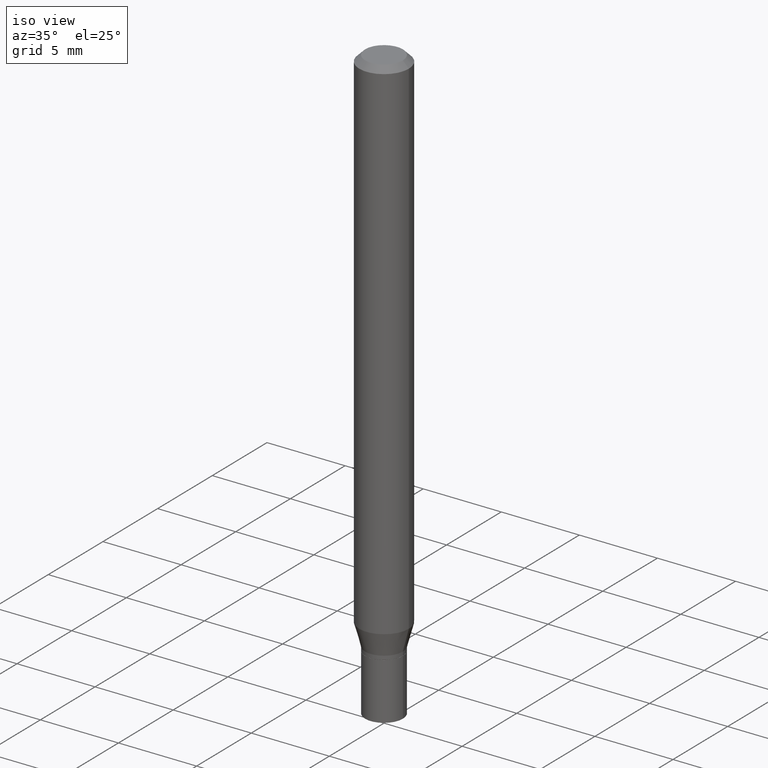
[diagram: clean part render]
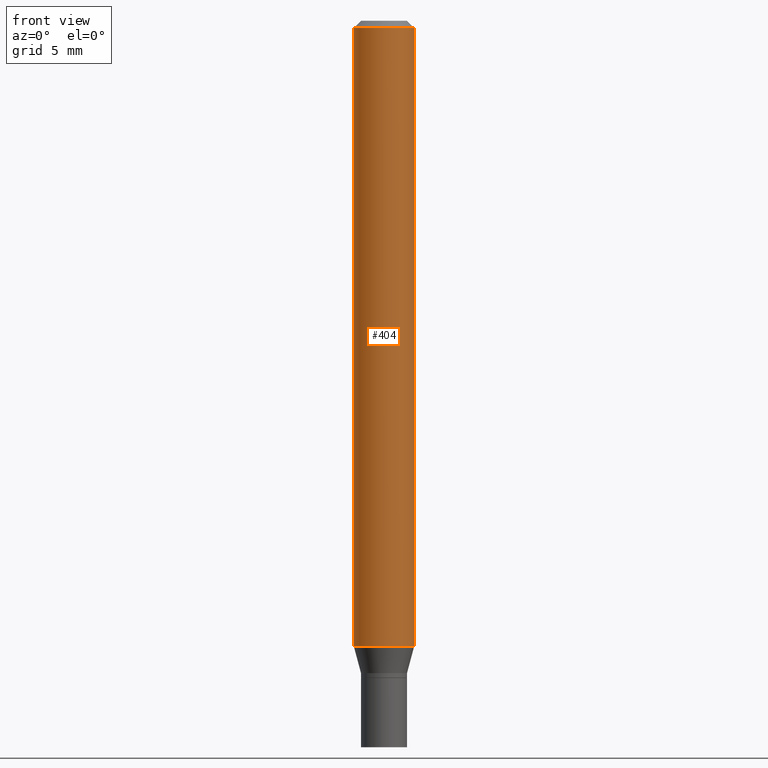
[diagram: tour spotlight — one face highlighted and labeled with its STEP entity id]
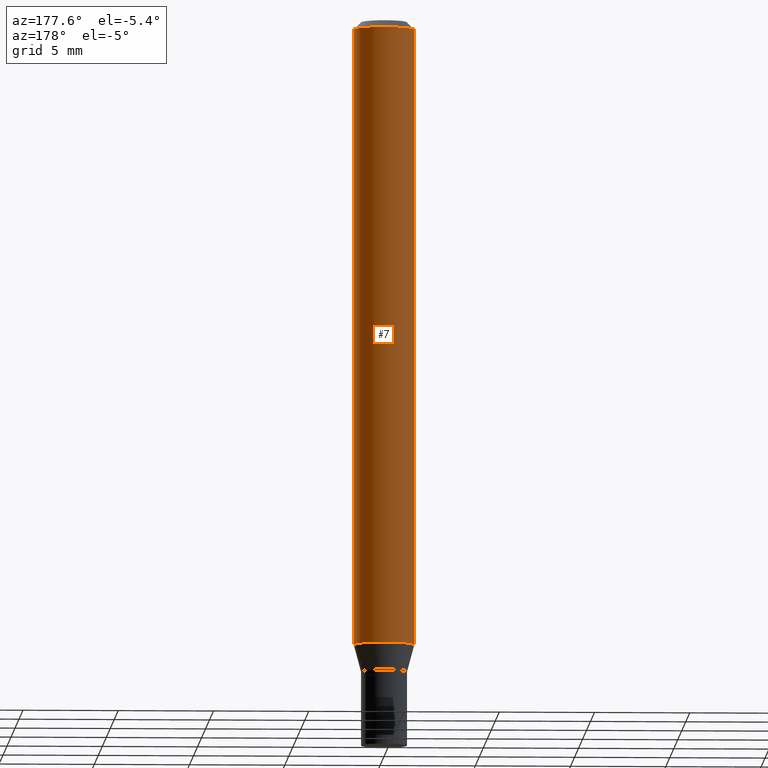
[diagram: tour spotlight — one face highlighted and labeled with its STEP entity id]
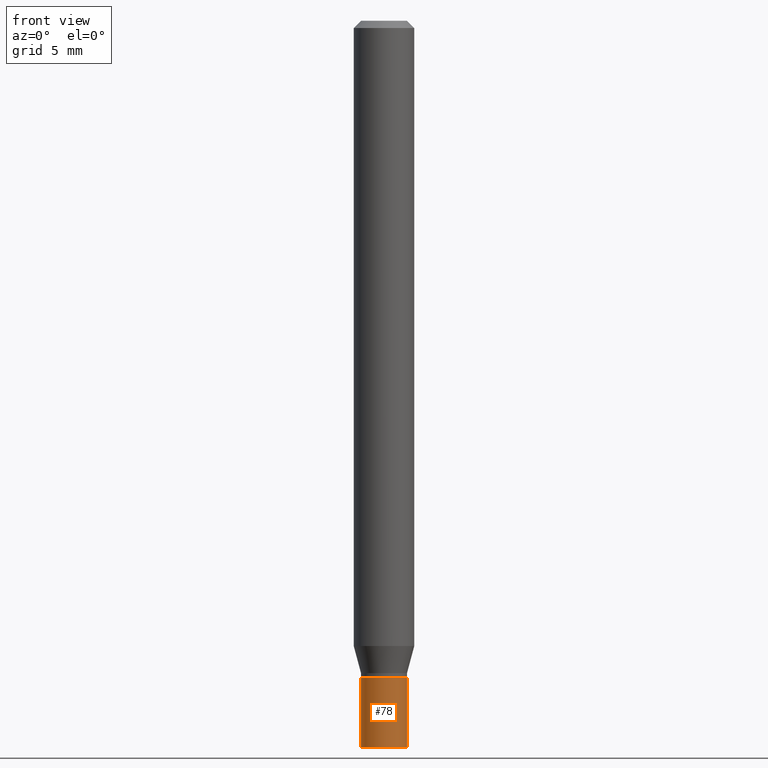
[diagram: tour spotlight — one face highlighted and labeled with its STEP entity id]
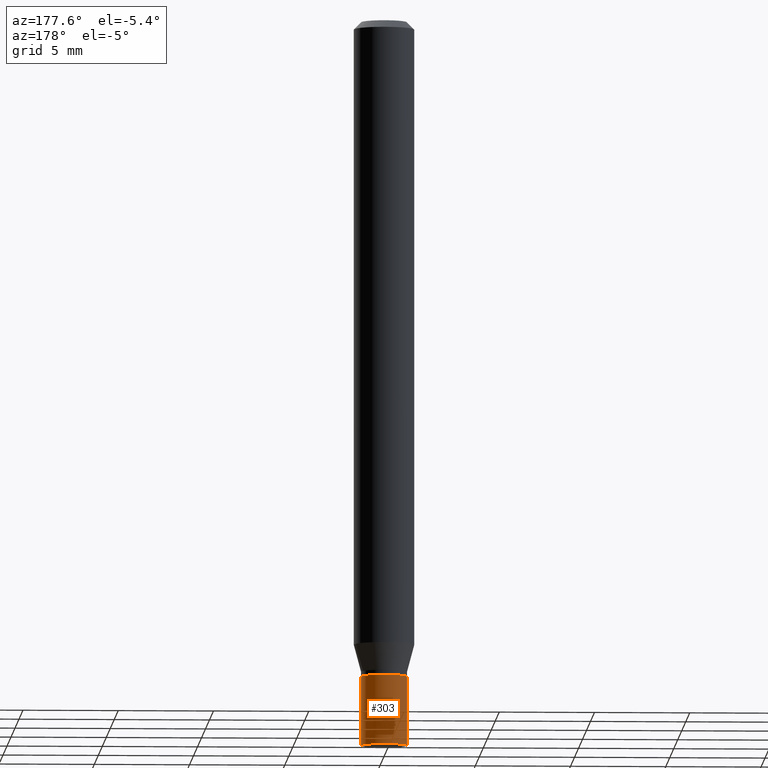
[diagram: tour spotlight — one face highlighted and labeled with its STEP entity id]
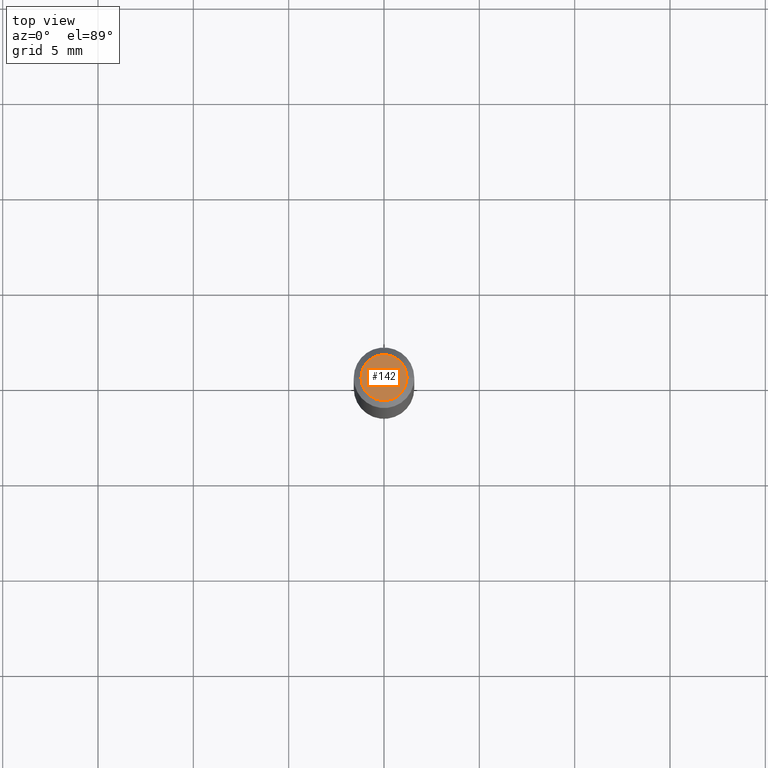
[diagram: tour spotlight — one face highlighted and labeled with its STEP entity id]
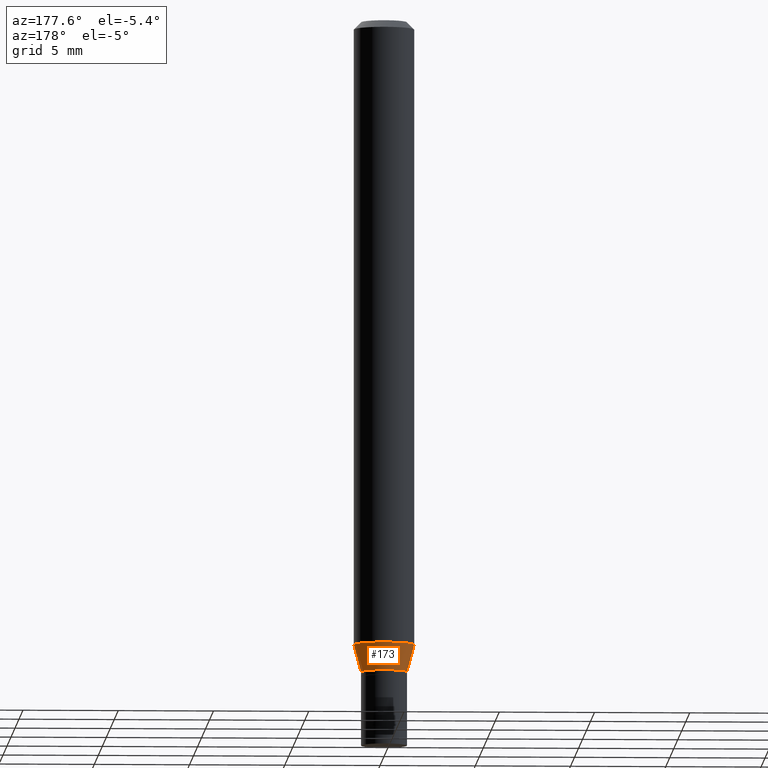
[diagram: tour spotlight — one face highlighted and labeled with its STEP entity id]
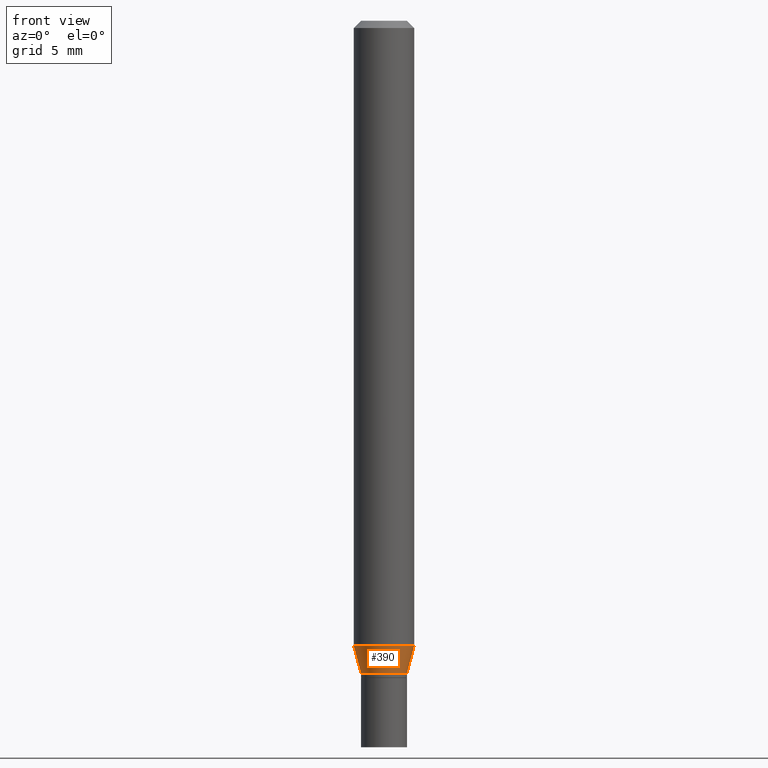
[diagram: tour spotlight — one face highlighted and labeled with its STEP entity id]
A machine part: a face-by-face anatomy tour. The part has 16 B-rep faces; the first image is the clean iso view, then the 7 largest visible faces are spotlighted one at a time (largest first), each with its STEP entity span.

Face 1 — front view, entity #404. In plain terms, the highlighted cylindrical surface (edge-blend (fillet) strip) has radius 1.5875 mm, axis along (-0, 0, 1).
Definition (entity closure, byte-faithful):
#4 = DIRECTION ( 'NONE',  ( -2.445468806185136597E-29, 3.491481338843145583E-15, 1.000000000000000000 ) ) ;
#5 = DIRECTION ( 'NONE',  ( 1.000000000000000000, -6.982962677686266711E-15, 0.000000000000000000 ) ) ;
#13 = CIRCLE ( 'NONE', #257, 0.06250000000000000000 ) ;
#53 = DIRECTION ( 'NONE',  ( 1.000000000000000000, -6.982962677686266711E-15, 4.876176775795935793E-29 ) ) ;
#57 = CARTESIAN_POINT ( 'NONE',  ( 0.06250000000000000000, -4.364351673553916694E-16, 3.047610484872459871E-30 ) ) ;
#79 = DIRECTION ( 'NONE',  ( -2.445468806185136877E-29, 3.491481338843145188E-15, 1.000000000000000000 ) ) ;
#80 = EDGE_LOOP ( 'NONE', ( #345, #139, #299, #383 ) ) ;
#86 = LINE ( 'NONE', #159, #352 ) ;
#91 = DIRECTION ( 'NONE',  ( -2.445468806185136877E-29, 3.491481338843145188E-15, 1.000000000000000000 ) ) ;
#92 = CARTESIAN_POINT ( 'NONE',  ( -0.06250000000000000000, -1.835881688775309869E-15, -0.01499999999999999944 ) ) ;
#111 = EDGE_CURVE ( 'NONE', #432, #354, #400, .T. ) ;
#121 = CARTESIAN_POINT ( 'NONE',  ( 0.06250000000000000000, -4.888073874380388472E-16, -0.01499999999999999944 ) ) ;
#127 = EDGE_CURVE ( 'NONE', #136, #130, #13, .T. ) ;
#130 = VERTEX_POINT ( 'NONE', #435 ) ;
#136 = VERTEX_POINT ( 'NONE', #278 ) ;
#139 = ORIENTED_EDGE ( 'NONE', *, *, #127, .T. ) ;
#159 = CARTESIAN_POINT ( 'NONE',  ( -0.06250000000000000000, 4.440892098500626162E-16, -3.074334431409316114E-30 ) ) ;
#161 = VECTOR ( 'NONE', #79, 39.37007874015748143 ) ;
#201 = LINE ( 'NONE', #57, #161 ) ;
#208 = AXIS2_PLACEMENT_3D ( 'NONE', #293, #455, #53 ) ;
#230 = EDGE_CURVE ( 'NONE', #136, #432, #86, .T. ) ;
#235 = EDGE_CURVE ( 'NONE', #130, #354, #201, .T. ) ;
#245 = CARTESIAN_POINT ( 'NONE',  ( 3.157147274436261961E-29, -4.507569577168097497E-15, -1.291019237886466442 ) ) ;
#257 = AXIS2_PLACEMENT_3D ( 'NONE', #245, #273, #314 ) ;
#264 = FACE_OUTER_BOUND ( 'NONE', #80, .T. ) ;
#273 = DIRECTION ( 'NONE',  ( -2.445468806185136597E-29, 3.491481338843145583E-15, 1.000000000000000000 ) ) ;
#278 = CARTESIAN_POINT ( 'NONE',  ( -0.06250000000000000000, -4.063480367318034881E-15, -1.291019237886466442 ) ) ;
#291 = AXIS2_PLACEMENT_3D ( 'NONE', #389, #4, #5 ) ;
#293 = CARTESIAN_POINT ( 'NONE',  ( 0.000000000000000000, 0.000000000000000000, 0.000000000000000000 ) ) ;
#299 = ORIENTED_EDGE ( 'NONE', *, *, #235, .T. ) ;
#314 = DIRECTION ( 'NONE',  ( 1.000000000000000000, -6.982962677686262766E-15, 0.000000000000000000 ) ) ;
#324 = CYLINDRICAL_SURFACE ( 'NONE', #208, 0.06250000000000000000 ) ;
#345 = ORIENTED_EDGE ( 'NONE', *, *, #230, .F. ) ;
#352 = VECTOR ( 'NONE', #91, 39.37007874015748143 ) ;
#354 = VERTEX_POINT ( 'NONE', #121 ) ;
#383 = ORIENTED_EDGE ( 'NONE', *, *, #111, .F. ) ;
#389 = CARTESIAN_POINT ( 'NONE',  ( 3.668203209277705088E-31, -5.237222008264718399E-17, -0.01499999999999999944 ) ) ;
#400 = CIRCLE ( 'NONE', #291, 0.06250000000000000000 ) ;
#404 = ADVANCED_FACE ( 'NONE', ( #264 ), #324, .T. ) ;
#432 = VERTEX_POINT ( 'NONE', #92 ) ;
#435 = CARTESIAN_POINT ( 'NONE',  ( 0.06250000000000000000, -4.944004744523489167E-15, -1.291019237886466442 ) ) ;
#455 = DIRECTION ( 'NONE',  ( -2.445468806185136597E-29, 3.491481338843145583E-15, 1.000000000000000000 ) ) ;

Face 2 — auxiliary view, entity #7. In plain terms, the highlighted cylindrical surface (edge-blend (fillet) strip) has radius 1.5875 mm, axis along (-0, 0, 1).
Definition (entity closure, byte-faithful):
#7 = ADVANCED_FACE ( 'NONE', ( #379 ), #59, .T. ) ;
#20 = CARTESIAN_POINT ( 'NONE',  ( 3.157147274436261961E-29, -4.507569577168097497E-15, -1.291019237886466442 ) ) ;
#26 = DIRECTION ( 'NONE',  ( 1.000000000000000000, -6.982962677686266711E-15, 0.000000000000000000 ) ) ;
#57 = CARTESIAN_POINT ( 'NONE',  ( 0.06250000000000000000, -4.364351673553916694E-16, 3.047610484872459871E-30 ) ) ;
#59 = CYLINDRICAL_SURFACE ( 'NONE', #74, 0.06250000000000000000 ) ;
#74 = AXIS2_PLACEMENT_3D ( 'NONE', #200, #199, #465 ) ;
#79 = DIRECTION ( 'NONE',  ( -2.445468806185136877E-29, 3.491481338843145188E-15, 1.000000000000000000 ) ) ;
#86 = LINE ( 'NONE', #159, #352 ) ;
#91 = DIRECTION ( 'NONE',  ( -2.445468806185136877E-29, 3.491481338843145188E-15, 1.000000000000000000 ) ) ;
#92 = CARTESIAN_POINT ( 'NONE',  ( -0.06250000000000000000, -1.835881688775309869E-15, -0.01499999999999999944 ) ) ;
#106 = CIRCLE ( 'NONE', #195, 0.06250000000000000000 ) ;
#121 = CARTESIAN_POINT ( 'NONE',  ( 0.06250000000000000000, -4.888073874380388472E-16, -0.01499999999999999944 ) ) ;
#130 = VERTEX_POINT ( 'NONE', #435 ) ;
#136 = VERTEX_POINT ( 'NONE', #278 ) ;
#147 = ORIENTED_EDGE ( 'NONE', *, *, #252, .T. ) ;
#150 = CARTESIAN_POINT ( 'NONE',  ( 3.668203209277705088E-31, -5.237222008264718399E-17, -0.01499999999999999944 ) ) ;
#159 = CARTESIAN_POINT ( 'NONE',  ( -0.06250000000000000000, 4.440892098500626162E-16, -3.074334431409316114E-30 ) ) ;
#161 = VECTOR ( 'NONE', #79, 39.37007874015748143 ) ;
#170 = CIRCLE ( 'NONE', #312, 0.06250000000000000000 ) ;
#179 = ORIENTED_EDGE ( 'NONE', *, *, #235, .F. ) ;
#195 = AXIS2_PLACEMENT_3D ( 'NONE', #20, #319, #213 ) ;
#199 = DIRECTION ( 'NONE',  ( -2.445468806185136597E-29, 3.491481338843145583E-15, 1.000000000000000000 ) ) ;
#200 = CARTESIAN_POINT ( 'NONE',  ( 0.000000000000000000, 0.000000000000000000, 0.000000000000000000 ) ) ;
#201 = LINE ( 'NONE', #57, #161 ) ;
#203 = EDGE_LOOP ( 'NONE', ( #147, #281, #349, #179 ) ) ;
#213 = DIRECTION ( 'NONE',  ( 1.000000000000000000, -6.982962677686262766E-15, 0.000000000000000000 ) ) ;
#219 = DIRECTION ( 'NONE',  ( -2.445468806185136597E-29, 3.491481338843145583E-15, 1.000000000000000000 ) ) ;
#230 = EDGE_CURVE ( 'NONE', #136, #432, #86, .T. ) ;
#235 = EDGE_CURVE ( 'NONE', #130, #354, #201, .T. ) ;
#252 = EDGE_CURVE ( 'NONE', #130, #136, #106, .T. ) ;
#278 = CARTESIAN_POINT ( 'NONE',  ( -0.06250000000000000000, -4.063480367318034881E-15, -1.291019237886466442 ) ) ;
#281 = ORIENTED_EDGE ( 'NONE', *, *, #230, .T. ) ;
#312 = AXIS2_PLACEMENT_3D ( 'NONE', #150, #219, #26 ) ;
#319 = DIRECTION ( 'NONE',  ( -2.445468806185136597E-29, 3.491481338843145583E-15, 1.000000000000000000 ) ) ;
#349 = ORIENTED_EDGE ( 'NONE', *, *, #357, .F. ) ;
#352 = VECTOR ( 'NONE', #91, 39.37007874015748143 ) ;
#354 = VERTEX_POINT ( 'NONE', #121 ) ;
#357 = EDGE_CURVE ( 'NONE', #354, #432, #170, .T. ) ;
#379 = FACE_OUTER_BOUND ( 'NONE', #203, .T. ) ;
#432 = VERTEX_POINT ( 'NONE', #92 ) ;
#435 = CARTESIAN_POINT ( 'NONE',  ( 0.06250000000000000000, -4.944004744523489167E-15, -1.291019237886466442 ) ) ;
#465 = DIRECTION ( 'NONE',  ( 1.000000000000000000, -6.982962677686266711E-15, 4.876176775795935793E-29 ) ) ;

Face 3 — front view, entity #78. In plain terms, the highlighted cylindrical surface (edge-blend (fillet) strip) has radius 1.2065 mm, axis along (-0, 0, 1).
Definition (entity closure, byte-faithful):
#12 = CARTESIAN_POINT ( 'NONE',  ( -0.04749999999999999362, 3.375077994860475429E-16, -2.336494167871079910E-30 ) ) ;
#28 = EDGE_CURVE ( 'NONE', #382, #120, #391, .T. ) ;
#62 = CARTESIAN_POINT ( 'NONE',  ( -0.04749999999999999362, -4.650073293051385418E-15, -1.500000000000000222 ) ) ;
#78 = ADVANCED_FACE ( 'NONE', ( #81 ), #449, .T. ) ;
#81 = FACE_OUTER_BOUND ( 'NONE', #461, .T. ) ;
#107 = VERTEX_POINT ( 'NONE', #112 ) ;
#108 = CARTESIAN_POINT ( 'NONE',  ( 0.04749999999999999362, -5.568912735454815688E-15, -1.500000000000000222 ) ) ;
#109 = EDGE_CURVE ( 'NONE', #120, #143, #346, .T. ) ;
#112 = CARTESIAN_POINT ( 'NONE',  ( -0.04749999999999999362, -4.650073293051385418E-15, -1.356999999999999984 ) ) ;
#120 = VERTEX_POINT ( 'NONE', #108 ) ;
#137 = AXIS2_PLACEMENT_3D ( 'NONE', #251, #217, #361 ) ;
#143 = VERTEX_POINT ( 'NONE', #364 ) ;
#149 = AXIS2_PLACEMENT_3D ( 'NONE', #228, #178, #371 ) ;
#178 = DIRECTION ( 'NONE',  ( -2.445468806185136597E-29, 3.491481338843145583E-15, 1.000000000000000000 ) ) ;
#181 = LINE ( 'NONE', #12, #185 ) ;
#185 = VECTOR ( 'NONE', #253, 39.37007874015748143 ) ;
#217 = DIRECTION ( 'NONE',  ( -2.445468806185136597E-29, 3.491481338843145583E-15, 1.000000000000000000 ) ) ;
#227 = DIRECTION ( 'NONE',  ( -2.445468806185136597E-29, 3.491481338843145583E-15, 1.000000000000000000 ) ) ;
#228 = CARTESIAN_POINT ( 'NONE',  ( 3.318501169993230375E-29, -4.737940176810148435E-15, -1.356999999999999984 ) ) ;
#242 = ORIENTED_EDGE ( 'NONE', *, *, #28, .T. ) ;
#244 = ORIENTED_EDGE ( 'NONE', *, *, #350, .F. ) ;
#251 = CARTESIAN_POINT ( 'NONE',  ( 3.668203209277704895E-29, -5.237222008264718177E-15, -1.500000000000000222 ) ) ;
#253 = DIRECTION ( 'NONE',  ( -2.445468806185136877E-29, 3.491481338843145188E-15, 1.000000000000000000 ) ) ;
#274 = CARTESIAN_POINT ( 'NONE',  ( 0.04749999999999999362, -3.316907271900976589E-16, 2.316183968503069081E-30 ) ) ;
#282 = CARTESIAN_POINT ( 'NONE',  ( 0.000000000000000000, 0.000000000000000000, 0.000000000000000000 ) ) ;
#301 = ORIENTED_EDGE ( 'NONE', *, *, #313, .F. ) ;
#305 = DIRECTION ( 'NONE',  ( -2.445468806185136877E-29, 3.491481338843145188E-15, 1.000000000000000000 ) ) ;
#313 = EDGE_CURVE ( 'NONE', #107, #143, #392, .T. ) ;
#321 = AXIS2_PLACEMENT_3D ( 'NONE', #282, #227, #452 ) ;
#346 = LINE ( 'NONE', #274, #423 ) ;
#350 = EDGE_CURVE ( 'NONE', #382, #107, #181, .T. ) ;
#361 = DIRECTION ( 'NONE',  ( 1.000000000000000000, -6.982962677686261977E-15, 0.000000000000000000 ) ) ;
#364 = CARTESIAN_POINT ( 'NONE',  ( 0.04749999999999999362, -5.069630904000245946E-15, -1.356999999999999984 ) ) ;
#371 = DIRECTION ( 'NONE',  ( 1.000000000000000000, -6.982962677686261977E-15, 0.000000000000000000 ) ) ;
#382 = VERTEX_POINT ( 'NONE', #62 ) ;
#391 = CIRCLE ( 'NONE', #137, 0.04749999999999999362 ) ;
#392 = CIRCLE ( 'NONE', #149, 0.04749999999999999362 ) ;
#411 = ORIENTED_EDGE ( 'NONE', *, *, #109, .T. ) ;
#423 = VECTOR ( 'NONE', #305, 39.37007874015748143 ) ;
#449 = CYLINDRICAL_SURFACE ( 'NONE', #321, 0.04749999999999999362 ) ;
#452 = DIRECTION ( 'NONE',  ( 1.000000000000000000, -6.982962677686267499E-15, 4.876176775795935793E-29 ) ) ;
#461 = EDGE_LOOP ( 'NONE', ( #244, #242, #411, #301 ) ) ;

Face 4 — auxiliary view, entity #303. In plain terms, the highlighted cylindrical surface (edge-blend (fillet) strip) has radius 1.2065 mm, axis along (-0, 0, 1).
Definition (entity closure, byte-faithful):
#12 = CARTESIAN_POINT ( 'NONE',  ( -0.04749999999999999362, 3.375077994860475429E-16, -2.336494167871079910E-30 ) ) ;
#35 = CYLINDRICAL_SURFACE ( 'NONE', #268, 0.04749999999999999362 ) ;
#60 = DIRECTION ( 'NONE',  ( 1.000000000000000000, -6.982962677686261977E-15, 0.000000000000000000 ) ) ;
#62 = CARTESIAN_POINT ( 'NONE',  ( -0.04749999999999999362, -4.650073293051385418E-15, -1.500000000000000222 ) ) ;
#70 = DIRECTION ( 'NONE',  ( 1.000000000000000000, -6.982962677686261977E-15, 0.000000000000000000 ) ) ;
#88 = DIRECTION ( 'NONE',  ( -2.445468806185136597E-29, 3.491481338843145583E-15, 1.000000000000000000 ) ) ;
#107 = VERTEX_POINT ( 'NONE', #112 ) ;
#108 = CARTESIAN_POINT ( 'NONE',  ( 0.04749999999999999362, -5.568912735454815688E-15, -1.500000000000000222 ) ) ;
#109 = EDGE_CURVE ( 'NONE', #120, #143, #346, .T. ) ;
#112 = CARTESIAN_POINT ( 'NONE',  ( -0.04749999999999999362, -4.650073293051385418E-15, -1.356999999999999984 ) ) ;
#120 = VERTEX_POINT ( 'NONE', #108 ) ;
#122 = EDGE_CURVE ( 'NONE', #120, #382, #194, .T. ) ;
#125 = DIRECTION ( 'NONE',  ( 1.000000000000000000, -6.982962677686267499E-15, 4.876176775795935793E-29 ) ) ;
#135 = ORIENTED_EDGE ( 'NONE', *, *, #350, .T. ) ;
#143 = VERTEX_POINT ( 'NONE', #364 ) ;
#181 = LINE ( 'NONE', #12, #185 ) ;
#185 = VECTOR ( 'NONE', #253, 39.37007874015748143 ) ;
#194 = CIRCLE ( 'NONE', #207, 0.04749999999999999362 ) ;
#207 = AXIS2_PLACEMENT_3D ( 'NONE', #243, #396, #70 ) ;
#243 = CARTESIAN_POINT ( 'NONE',  ( 3.668203209277704895E-29, -5.237222008264718177E-15, -1.500000000000000222 ) ) ;
#253 = DIRECTION ( 'NONE',  ( -2.445468806185136877E-29, 3.491481338843145188E-15, 1.000000000000000000 ) ) ;
#258 = CIRCLE ( 'NONE', #343, 0.04749999999999999362 ) ;
#268 = AXIS2_PLACEMENT_3D ( 'NONE', #407, #88, #125 ) ;
#274 = CARTESIAN_POINT ( 'NONE',  ( 0.04749999999999999362, -3.316907271900976589E-16, 2.316183968503069081E-30 ) ) ;
#303 = ADVANCED_FACE ( 'NONE', ( #368 ), #35, .T. ) ;
#305 = DIRECTION ( 'NONE',  ( -2.445468806185136877E-29, 3.491481338843145188E-15, 1.000000000000000000 ) ) ;
#309 = EDGE_LOOP ( 'NONE', ( #355, #135, #441, #394 ) ) ;
#343 = AXIS2_PLACEMENT_3D ( 'NONE', #366, #380, #60 ) ;
#346 = LINE ( 'NONE', #274, #423 ) ;
#350 = EDGE_CURVE ( 'NONE', #382, #107, #181, .T. ) ;
#355 = ORIENTED_EDGE ( 'NONE', *, *, #122, .T. ) ;
#364 = CARTESIAN_POINT ( 'NONE',  ( 0.04749999999999999362, -5.069630904000245946E-15, -1.356999999999999984 ) ) ;
#366 = CARTESIAN_POINT ( 'NONE',  ( 3.318501169993230375E-29, -4.737940176810148435E-15, -1.356999999999999984 ) ) ;
#368 = FACE_OUTER_BOUND ( 'NONE', #309, .T. ) ;
#380 = DIRECTION ( 'NONE',  ( -2.445468806185136597E-29, 3.491481338843145583E-15, 1.000000000000000000 ) ) ;
#382 = VERTEX_POINT ( 'NONE', #62 ) ;
#394 = ORIENTED_EDGE ( 'NONE', *, *, #109, .F. ) ;
#396 = DIRECTION ( 'NONE',  ( -2.445468806185136597E-29, 3.491481338843145583E-15, 1.000000000000000000 ) ) ;
#407 = CARTESIAN_POINT ( 'NONE',  ( 0.000000000000000000, 0.000000000000000000, 0.000000000000000000 ) ) ;
#423 = VECTOR ( 'NONE', #305, 39.37007874015748143 ) ;
#437 = EDGE_CURVE ( 'NONE', #143, #107, #258, .T. ) ;
#441 = ORIENTED_EDGE ( 'NONE', *, *, #437, .F. ) ;

Face 5 — top view, entity #142. In plain terms, the highlighted planar face has unit normal (0, -0, -1).
Definition (entity closure, byte-faithful):
#14 = CIRCLE ( 'NONE', #458, 0.04749999999999999362 ) ;
#40 = CARTESIAN_POINT ( 'NONE',  ( -0.04749999999999999362, 3.578768372314211492E-16, 7.877379304411263442E-17 ) ) ;
#51 = CARTESIAN_POINT ( 'NONE',  ( 0.04749999999999999362, -4.035134999187576651E-16, 7.877379304411762643E-17 ) ) ;
#73 = EDGE_LOOP ( 'NONE', ( #206, #167 ) ) ;
#83 = FACE_OUTER_BOUND ( 'NONE', #73, .T. ) ;
#100 = CIRCLE ( 'NONE', #302, 0.04749999999999999362 ) ;
#128 = DIRECTION ( 'NONE',  ( 2.438088387897960049E-29, -3.491481338843145188E-15, -1.000000000000000000 ) ) ;
#129 = DIRECTION ( 'NONE',  ( 1.000000000000000000, -6.982962677686267499E-15, 4.884662768193073002E-29 ) ) ;
#142 = ADVANCED_FACE ( 'NONE', ( #83 ), #453, .F. ) ;
#167 = ORIENTED_EDGE ( 'NONE', *, *, #434, .T. ) ;
#183 = EDGE_CURVE ( 'NONE', #342, #316, #100, .T. ) ;
#206 = ORIENTED_EDGE ( 'NONE', *, *, #183, .T. ) ;
#234 = DIRECTION ( 'NONE',  ( 1.000000000000000000, -6.982962677686267499E-15, 4.884662768193073002E-29 ) ) ;
#248 = CARTESIAN_POINT ( 'NONE',  ( -1.926388536342670348E-45, 2.750372284034196662E-31, 7.877379304411503798E-17 ) ) ;
#260 = DIRECTION ( 'NONE',  ( -1.000000000000000000, 6.982962677686265922E-15, -4.876176775795935793E-29 ) ) ;
#266 = AXIS2_PLACEMENT_3D ( 'NONE', #328, #128, #260 ) ;
#302 = AXIS2_PLACEMENT_3D ( 'NONE', #248, #399, #129 ) ;
#316 = VERTEX_POINT ( 'NONE', #51 ) ;
#328 = CARTESIAN_POINT ( 'NONE',  ( 3.316907271900976096E-16, 0.04749999999999999362, -1.264584670729918775E-16 ) ) ;
#338 = CARTESIAN_POINT ( 'NONE',  ( -1.926388536342670348E-45, 2.750372284034196662E-31, 7.877379304411503798E-17 ) ) ;
#342 = VERTEX_POINT ( 'NONE', #40 ) ;
#399 = DIRECTION ( 'NONE',  ( -2.445468806185136597E-29, 3.491481338843145583E-15, 1.000000000000000000 ) ) ;
#420 = DIRECTION ( 'NONE',  ( -2.445468806185136597E-29, 3.491481338843145583E-15, 1.000000000000000000 ) ) ;
#434 = EDGE_CURVE ( 'NONE', #316, #342, #14, .T. ) ;
#453 = PLANE ( 'NONE',  #266 ) ;
#458 = AXIS2_PLACEMENT_3D ( 'NONE', #338, #420, #234 ) ;

Face 6 — auxiliary view, entity #173. In plain terms, the highlighted conical surface has half-angle 15 deg.
Definition (entity closure, byte-faithful):
#11 = CARTESIAN_POINT ( 'NONE',  ( -0.04749999999999993811, -4.214498965626852086E-15, -1.347000000000000197 ) ) ;
#15 = ORIENTED_EDGE ( 'NONE', *, *, #252, .F. ) ;
#19 = DIRECTION ( 'NONE',  ( 1.000000000000000000, -6.982962677686270655E-15, 0.000000000000000000 ) ) ;
#20 = CARTESIAN_POINT ( 'NONE',  ( 3.157147274436261961E-29, -4.507569577168097497E-15, -1.291019237886466442 ) ) ;
#27 = AXIS2_PLACEMENT_3D ( 'NONE', #36, #403, #19 ) ;
#36 = CARTESIAN_POINT ( 'NONE',  ( 3.294046481931379390E-29, -4.703025363421717574E-15, -1.347000000000000197 ) ) ;
#39 = DIRECTION ( 'NONE',  ( 1.000000000000000000, -6.982962677686270655E-15, 0.000000000000000000 ) ) ;
#65 = ORIENTED_EDGE ( 'NONE', *, *, #69, .T. ) ;
#69 = EDGE_CURVE ( 'NONE', #347, #177, #221, .T. ) ;
#84 = VECTOR ( 'NONE', #96, 39.37007874015748143 ) ;
#93 = LINE ( 'NONE', #180, #84 ) ;
#96 = DIRECTION ( 'NONE',  ( 0.2588190451025195182, 1.565188264969636759E-15, 0.9659258262890685343 ) ) ;
#103 = EDGE_CURVE ( 'NONE', #347, #130, #93, .T. ) ;
#105 = EDGE_CURVE ( 'NONE', #177, #136, #381, .T. ) ;
#106 = CIRCLE ( 'NONE', #195, 0.06250000000000000000 ) ;
#117 = FACE_OUTER_BOUND ( 'NONE', #425, .T. ) ;
#130 = VERTEX_POINT ( 'NONE', #435 ) ;
#136 = VERTEX_POINT ( 'NONE', #278 ) ;
#140 = DIRECTION ( 'NONE',  ( -0.2588190451025195182, 5.211531920934539209E-15, 0.9659258262890685343 ) ) ;
#148 = VECTOR ( 'NONE', #140, 39.37007874015748143 ) ;
#162 = CARTESIAN_POINT ( 'NONE',  ( 0.04749999999999993811, -5.034716090611815085E-15, -1.347000000000000197 ) ) ;
#169 = ORIENTED_EDGE ( 'NONE', *, *, #103, .F. ) ;
#173 = ADVANCED_FACE ( 'NONE', ( #117 ), #385, .T. ) ;
#177 = VERTEX_POINT ( 'NONE', #11 ) ;
#180 = CARTESIAN_POINT ( 'NONE',  ( 0.04749999999999993811, -5.034716090611815085E-15, -1.347000000000000197 ) ) ;
#195 = AXIS2_PLACEMENT_3D ( 'NONE', #20, #319, #213 ) ;
#213 = DIRECTION ( 'NONE',  ( 1.000000000000000000, -6.982962677686262766E-15, 0.000000000000000000 ) ) ;
#215 = DIRECTION ( 'NONE',  ( -2.445468806185136597E-29, 3.491481338843145583E-15, 1.000000000000000000 ) ) ;
#221 = CIRCLE ( 'NONE', #27, 0.04749999999999993811 ) ;
#232 = ORIENTED_EDGE ( 'NONE', *, *, #105, .T. ) ;
#247 = AXIS2_PLACEMENT_3D ( 'NONE', #250, #215, #39 ) ;
#250 = CARTESIAN_POINT ( 'NONE',  ( 3.294046481931379390E-29, -4.703025363421717574E-15, -1.347000000000000197 ) ) ;
#252 = EDGE_CURVE ( 'NONE', #130, #136, #106, .T. ) ;
#278 = CARTESIAN_POINT ( 'NONE',  ( -0.06250000000000000000, -4.063480367318034881E-15, -1.291019237886466442 ) ) ;
#308 = CARTESIAN_POINT ( 'NONE',  ( -0.04749999999999993811, -4.365517563935670081E-15, -1.347000000000000197 ) ) ;
#319 = DIRECTION ( 'NONE',  ( -2.445468806185136597E-29, 3.491481338843145583E-15, 1.000000000000000000 ) ) ;
#347 = VERTEX_POINT ( 'NONE', #162 ) ;
#381 = LINE ( 'NONE', #308, #148 ) ;
#385 = CONICAL_SURFACE ( 'NONE', #247, 0.04749999999999993811, 0.2617993877991481311 ) ;
#403 = DIRECTION ( 'NONE',  ( -2.445468806185136597E-29, 3.491481338843145583E-15, 1.000000000000000000 ) ) ;
#425 = EDGE_LOOP ( 'NONE', ( #65, #232, #15, #169 ) ) ;
#435 = CARTESIAN_POINT ( 'NONE',  ( 0.06250000000000000000, -4.944004744523489167E-15, -1.291019237886466442 ) ) ;

Face 7 — front view, entity #390. In plain terms, the highlighted conical surface has half-angle 15 deg.
Definition (entity closure, byte-faithful):
#11 = CARTESIAN_POINT ( 'NONE',  ( -0.04749999999999993811, -4.214498965626852086E-15, -1.347000000000000197 ) ) ;
#13 = CIRCLE ( 'NONE', #257, 0.06250000000000000000 ) ;
#22 = FACE_OUTER_BOUND ( 'NONE', #236, .T. ) ;
#45 = CONICAL_SURFACE ( 'NONE', #249, 0.04749999999999993811, 0.2617993877991481311 ) ;
#84 = VECTOR ( 'NONE', #96, 39.37007874015748143 ) ;
#93 = LINE ( 'NONE', #180, #84 ) ;
#96 = DIRECTION ( 'NONE',  ( 0.2588190451025195182, 1.565188264969636759E-15, 0.9659258262890685343 ) ) ;
#103 = EDGE_CURVE ( 'NONE', #347, #130, #93, .T. ) ;
#105 = EDGE_CURVE ( 'NONE', #177, #136, #381, .T. ) ;
#127 = EDGE_CURVE ( 'NONE', #136, #130, #13, .T. ) ;
#130 = VERTEX_POINT ( 'NONE', #435 ) ;
#131 = CIRCLE ( 'NONE', #184, 0.04749999999999993811 ) ;
#136 = VERTEX_POINT ( 'NONE', #278 ) ;
#140 = DIRECTION ( 'NONE',  ( -0.2588190451025195182, 5.211531920934539209E-15, 0.9659258262890685343 ) ) ;
#148 = VECTOR ( 'NONE', #140, 39.37007874015748143 ) ;
#154 = CARTESIAN_POINT ( 'NONE',  ( 3.294046481931379390E-29, -4.703025363421717574E-15, -1.347000000000000197 ) ) ;
#157 = CARTESIAN_POINT ( 'NONE',  ( 3.294046481931379390E-29, -4.703025363421717574E-15, -1.347000000000000197 ) ) ;
#162 = CARTESIAN_POINT ( 'NONE',  ( 0.04749999999999993811, -5.034716090611815085E-15, -1.347000000000000197 ) ) ;
#171 = ORIENTED_EDGE ( 'NONE', *, *, #103, .T. ) ;
#177 = VERTEX_POINT ( 'NONE', #11 ) ;
#180 = CARTESIAN_POINT ( 'NONE',  ( 0.04749999999999993811, -5.034716090611815085E-15, -1.347000000000000197 ) ) ;
#184 = AXIS2_PLACEMENT_3D ( 'NONE', #154, #409, #462 ) ;
#197 = DIRECTION ( 'NONE',  ( -2.445468806185136597E-29, 3.491481338843145583E-15, 1.000000000000000000 ) ) ;
#210 = EDGE_CURVE ( 'NONE', #177, #347, #131, .T. ) ;
#212 = ORIENTED_EDGE ( 'NONE', *, *, #105, .F. ) ;
#236 = EDGE_LOOP ( 'NONE', ( #212, #237, #171, #298 ) ) ;
#237 = ORIENTED_EDGE ( 'NONE', *, *, #210, .T. ) ;
#245 = CARTESIAN_POINT ( 'NONE',  ( 3.157147274436261961E-29, -4.507569577168097497E-15, -1.291019237886466442 ) ) ;
#249 = AXIS2_PLACEMENT_3D ( 'NONE', #157, #197, #372 ) ;
#257 = AXIS2_PLACEMENT_3D ( 'NONE', #245, #273, #314 ) ;
#273 = DIRECTION ( 'NONE',  ( -2.445468806185136597E-29, 3.491481338843145583E-15, 1.000000000000000000 ) ) ;
#278 = CARTESIAN_POINT ( 'NONE',  ( -0.06250000000000000000, -4.063480367318034881E-15, -1.291019237886466442 ) ) ;
#298 = ORIENTED_EDGE ( 'NONE', *, *, #127, .F. ) ;
#308 = CARTESIAN_POINT ( 'NONE',  ( -0.04749999999999993811, -4.365517563935670081E-15, -1.347000000000000197 ) ) ;
#314 = DIRECTION ( 'NONE',  ( 1.000000000000000000, -6.982962677686262766E-15, 0.000000000000000000 ) ) ;
#347 = VERTEX_POINT ( 'NONE', #162 ) ;
#372 = DIRECTION ( 'NONE',  ( 1.000000000000000000, -6.982962677686270655E-15, 0.000000000000000000 ) ) ;
#381 = LINE ( 'NONE', #308, #148 ) ;
#390 = ADVANCED_FACE ( 'NONE', ( #22 ), #45, .T. ) ;
#409 = DIRECTION ( 'NONE',  ( -2.445468806185136597E-29, 3.491481338843145583E-15, 1.000000000000000000 ) ) ;
#435 = CARTESIAN_POINT ( 'NONE',  ( 0.06250000000000000000, -4.944004744523489167E-15, -1.291019237886466442 ) ) ;
#462 = DIRECTION ( 'NONE',  ( 1.000000000000000000, -6.982962677686270655E-15, 0.000000000000000000 ) ) ;